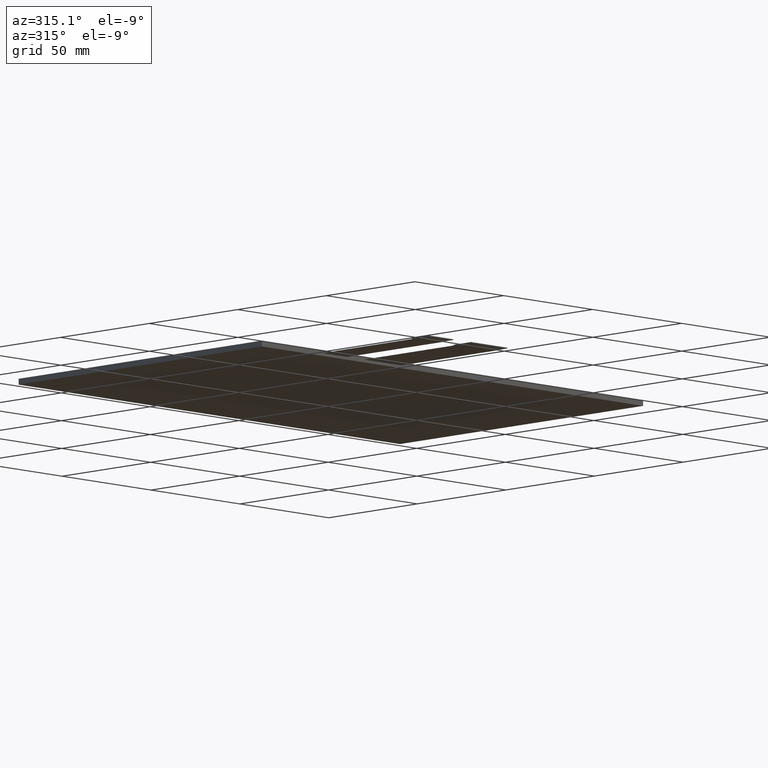
[diagram: clean part render]
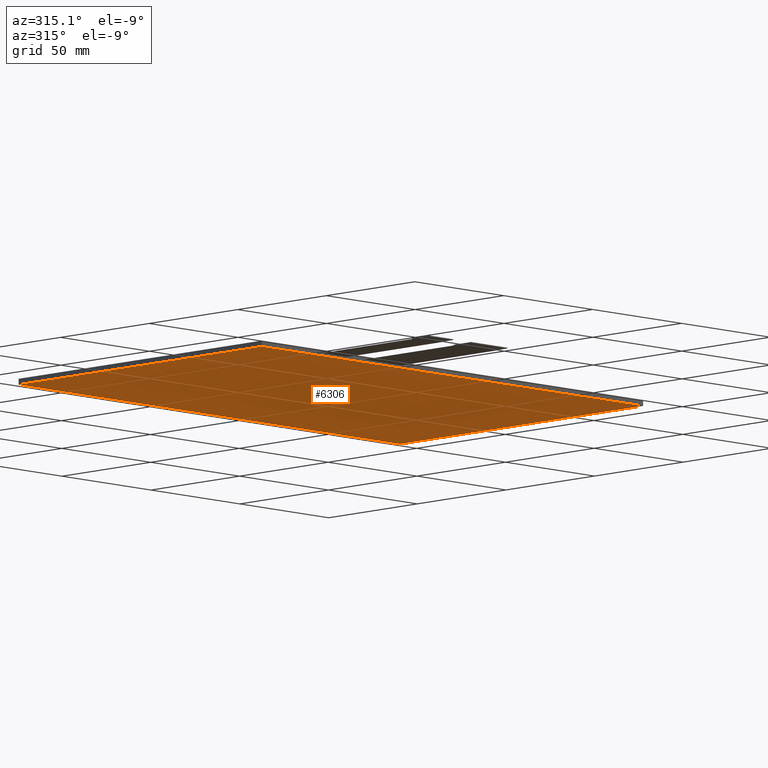
[diagram: same view with one face highlighted and labeled with its STEP entity id]
A machine part, auxiliary view. The second image highlights one B-rep face of the part: STEP entity #6306.
In plain terms, the highlighted planar face has unit normal (0, 0, -1).
Its self-contained STEP definition (entity closure, byte-faithful):
#368=PLANE('',#6636);
#670=FACE_OUTER_BOUND('',#976,.T.);
#976=EDGE_LOOP('',(#5997,#5998,#5999,#6000));
#1850=LINE('',#9908,#2730);
#1852=LINE('',#9912,#2732);
#1854=LINE('',#9916,#2734);
#1856=LINE('',#9919,#2736);
#2730=VECTOR('',#8122,10.);
#2732=VECTOR('',#8126,10.);
#2734=VECTOR('',#8130,10.);
#2736=VECTOR('',#8134,10.);
#3333=VERTEX_POINT('',#9905);
#3334=VERTEX_POINT('',#9907);
#3335=VERTEX_POINT('',#9911);
#3336=VERTEX_POINT('',#9915);
#4218=EDGE_CURVE('',#3334,#3333,#1850,.T.);
#4220=EDGE_CURVE('',#3335,#3334,#1852,.T.);
#4222=EDGE_CURVE('',#3336,#3335,#1854,.T.);
#4224=EDGE_CURVE('',#3333,#3336,#1856,.T.);
#5997=ORIENTED_EDGE('',*,*,#4224,.T.);
#5998=ORIENTED_EDGE('',*,*,#4222,.T.);
#5999=ORIENTED_EDGE('',*,*,#4220,.T.);
#6000=ORIENTED_EDGE('',*,*,#4218,.T.);
#6306=ADVANCED_FACE('',(#670),#368,.T.);
#6636=AXIS2_PLACEMENT_3D('',#9921,#8137,#8138);
#8122=DIRECTION('',(-1.29377774173361E-16,1.,0.));
#8126=DIRECTION('',(-1.,-1.65627677333357E-16,0.));
#8130=DIRECTION('',(-1.29377774173361E-16,-1.,0.));
#8134=DIRECTION('',(1.,0.,0.));
#8137=DIRECTION('center_axis',(0.,0.,-1.));
#8138=DIRECTION('ref_axis',(-1.,0.,0.));
#9905=CARTESIAN_POINT('',(-107.4,66.65,-2.35));
#9907=CARTESIAN_POINT('',(-107.4,-70.65,-2.35));
#9908=CARTESIAN_POINT('',(-107.4,66.65,-2.35));
#9911=CARTESIAN_POINT('',(107.1,-70.65,-2.35));
#9912=CARTESIAN_POINT('',(-107.4,-70.65,-2.35));
#9915=CARTESIAN_POINT('',(107.1,66.65,-2.35));
#9916=CARTESIAN_POINT('',(107.1,-70.65,-2.35));
#9919=CARTESIAN_POINT('',(107.1,66.65,-2.35));
#9921=CARTESIAN_POINT('Origin',(-0.149999999999988,-1.99999999999998,-2.35));